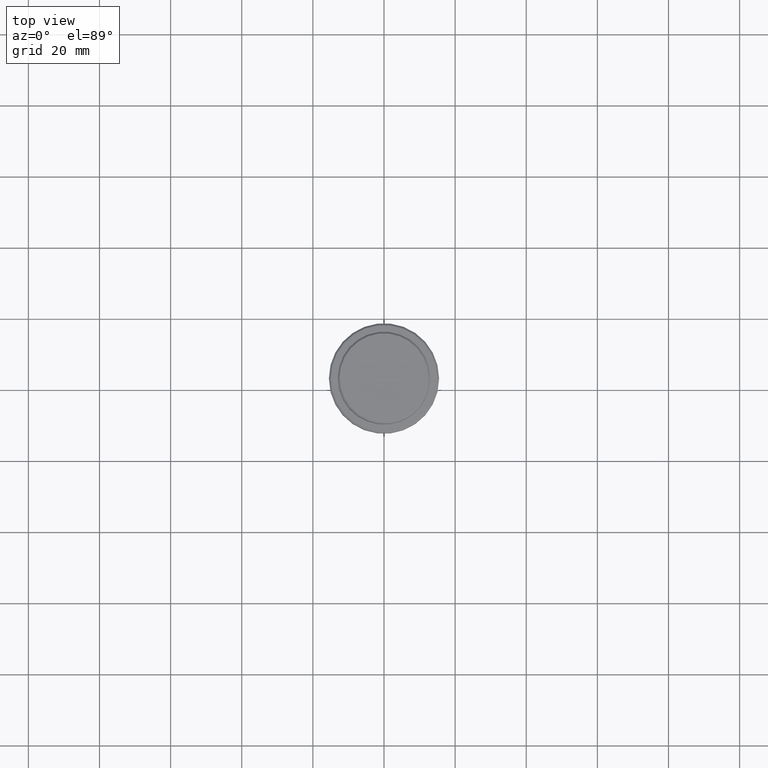
[diagram: clean part render]
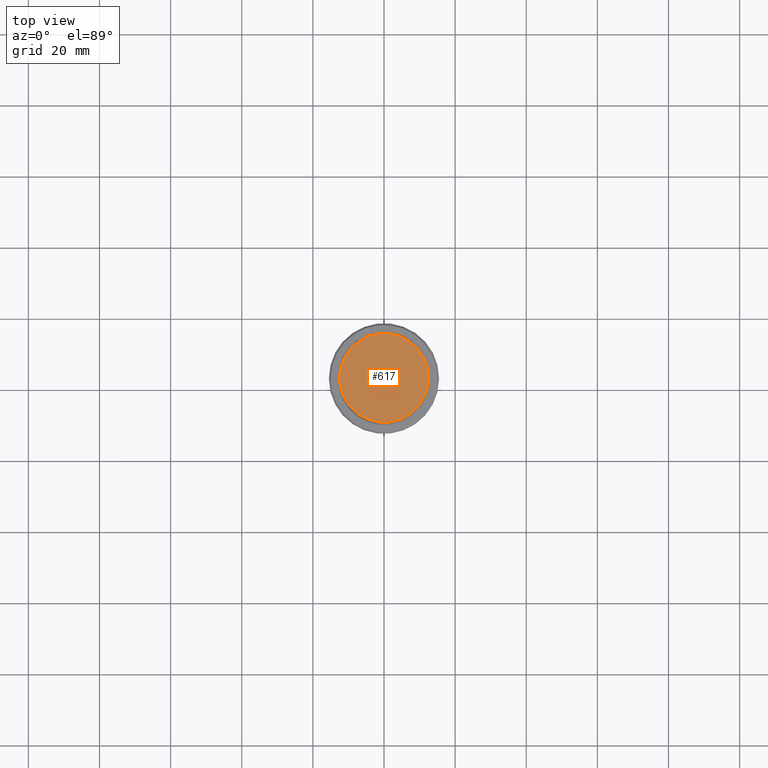
[diagram: same view with one face highlighted and labeled with its STEP entity id]
A machine part, top view. The second image highlights one B-rep face of the part: STEP entity #617.
In plain terms, the highlighted planar face has unit normal (0, -0, 1).
Its self-contained STEP definition (entity closure, byte-faithful):
#37 = PLANE ( 'NONE',  #600 ) ;
#76 = CARTESIAN_POINT ( 'NONE',  ( 0.000000000000000000, 0.000000000000000000, 0.000000000000000000 ) ) ;
#83 = DIRECTION ( 'NONE',  ( 1.000000000000000000, 0.000000000000000000, 0.000000000000000000 ) ) ;
#86 = CARTESIAN_POINT ( 'NONE',  ( -12.50000000000001243, 0.000000000000000000, 0.000000000000000000 ) ) ;
#181 = DIRECTION ( 'NONE',  ( -0.000000000000000000, -0.000000000000000000, 1.000000000000000000 ) ) ;
#220 = VERTEX_POINT ( 'NONE', #86 ) ;
#408 = VERTEX_POINT ( 'NONE', #989 ) ;
#466 = AXIS2_PLACEMENT_3D ( 'NONE', #1061, #181, #83 ) ;
#555 = EDGE_LOOP ( 'NONE', ( #1216, #752 ) ) ;
#600 = AXIS2_PLACEMENT_3D ( 'NONE', #692, #821, #909 ) ;
#617 = ADVANCED_FACE ( 'NONE', ( #1017 ), #37, .T. ) ;
#692 = CARTESIAN_POINT ( 'NONE',  ( 0.000000000000000000, 0.000000000000000000, 0.000000000000000000 ) ) ;
#739 = CIRCLE ( 'NONE', #466, 12.50000000000001243 ) ;
#752 = ORIENTED_EDGE ( 'NONE', *, *, #1025, .T. ) ;
#821 = DIRECTION ( 'NONE',  ( 0.000000000000000000, -0.000000000000000000, 1.000000000000000000 ) ) ;
#909 = DIRECTION ( 'NONE',  ( 1.000000000000000000, 0.000000000000000000, 0.000000000000000000 ) ) ;
#963 = DIRECTION ( 'NONE',  ( 1.000000000000000000, 0.000000000000000000, 0.000000000000000000 ) ) ;
#989 = CARTESIAN_POINT ( 'NONE',  ( 12.50000000000001243, 1.561424668912876097E-15, 0.000000000000000000 ) ) ;
#1001 = EDGE_CURVE ( 'NONE', #220, #408, #739, .T. ) ;
#1017 = FACE_OUTER_BOUND ( 'NONE', #555, .T. ) ;
#1025 = EDGE_CURVE ( 'NONE', #408, #220, #1397, .T. ) ;
#1049 = DIRECTION ( 'NONE',  ( -0.000000000000000000, -0.000000000000000000, 1.000000000000000000 ) ) ;
#1061 = CARTESIAN_POINT ( 'NONE',  ( 0.000000000000000000, 0.000000000000000000, 0.000000000000000000 ) ) ;
#1216 = ORIENTED_EDGE ( 'NONE', *, *, #1001, .T. ) ;
#1220 = AXIS2_PLACEMENT_3D ( 'NONE', #76, #1049, #963 ) ;
#1397 = CIRCLE ( 'NONE', #1220, 12.50000000000001243 ) ;